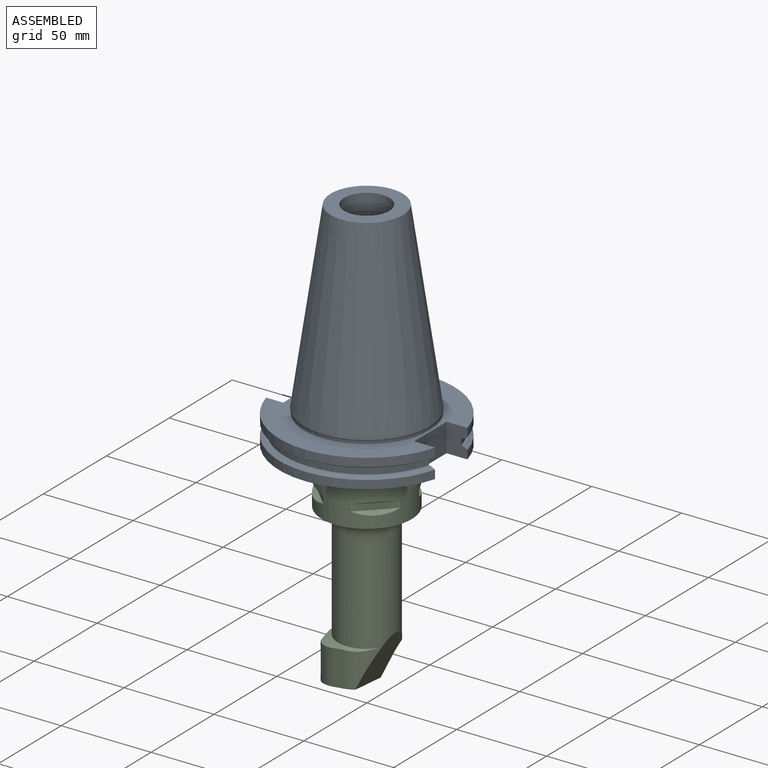
[diagram: assembled view]
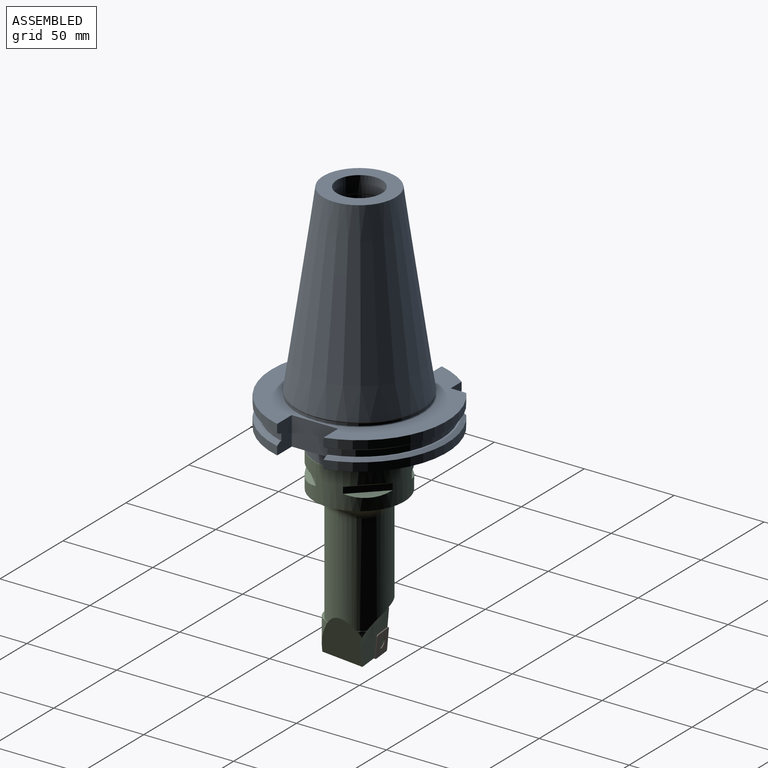
[diagram: assembled view, second angle]
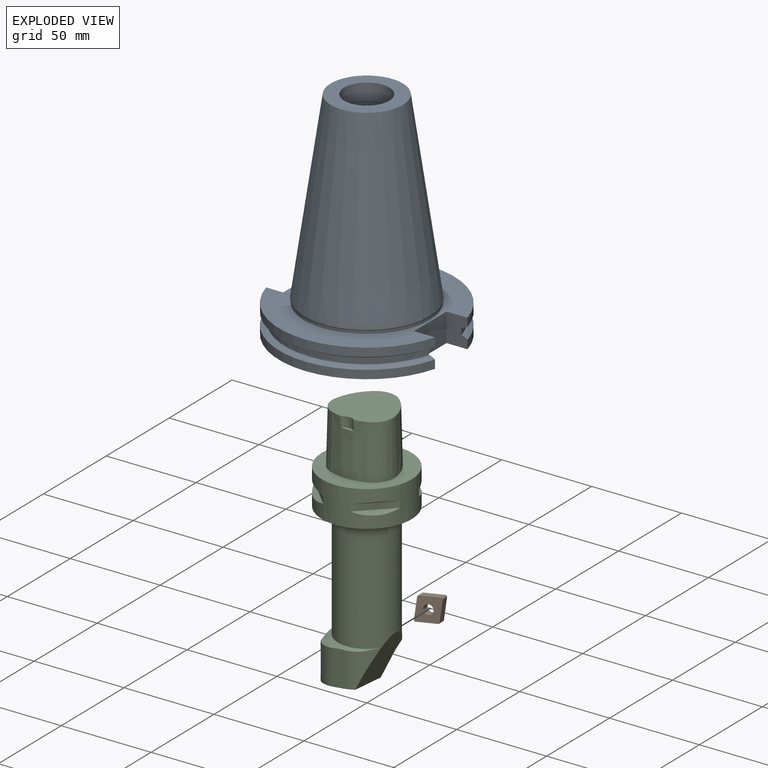
[diagram: exploded view]
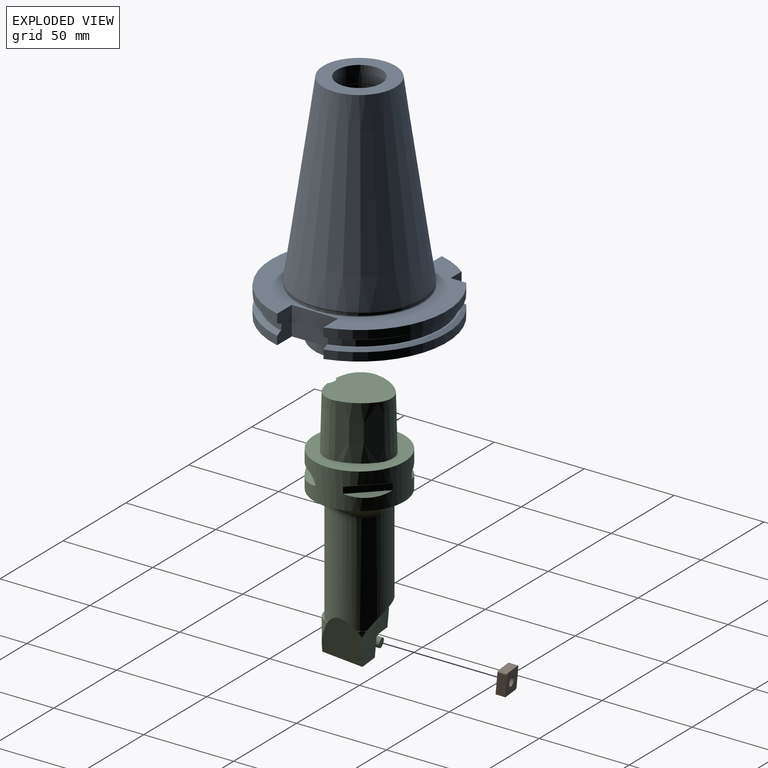
[diagram: exploded view, second angle]
ASSEMBLY  parts=3 mates=2
PART A: 45 faces, bbox 94x97.5x131.6 mm
  f0: plane 25.81x15.85mm, normal (-1,0,0), area 409mm2, adj f5,f8,f22,f23
  f1: cylinder r=48.72mm len=93.97mm, axis (0,0,-1), area 592.5mm2, adj f5,f22,f24,f36
  f2: cylinder r=48.72mm len=76.84mm, axis (0,0,-1), area 446.2mm2, adj f5,f21,f25,f31
  f3: cylinder r=48.72mm len=16.95mm, axis (0,0,-1), area 89mm2, adj f5,f20,f23,f37
  f4: cylinder r=48.72mm len=93.97mm, axis (0,0,-1), area 598.8mm2, adj f8,f22,f24,f35
  f5: plane 97.45x93.97mm, normal (0,0,1), area 2896.8mm2, adj f0,f1,f2,f3,f14,f20,f21,f22
  f6: cylinder r=48.72mm len=76.84mm, axis (0,0,-1), area 451mm2, adj f8,f21,f25,f30
  f7: cylinder r=48.72mm len=16.95mm, axis (0,0,-1), area 89.9mm2, adj f8,f20,f23,f38
  f8: plane 97.45x93.97mm, normal (0,0,-1), area 4848mm2, adj f0,f4,f6,f7,f20,f21,f22,f23
  f9: cylinder r=12.51mm len=25.01mm, axis (0,0,-1), area 726.8mm2, adj f12,f15
  f10: cone r=35.03mm half-angle=30deg, axis (0,0,1), area 143.3mm2, adj f11,f13
  f11: cylinder r=34.7mm len=69.4mm, axis (0,0,-1), area 290.7mm2, adj f10,f14
  f12: plane 40.21x40.21mm, normal (0,0,1), area 778.9mm2, adj f9,f13
  f13: cone r=20.11mm half-angle=8.3deg, axis (0,0,-1), area 17906.8mm2, adj f10,f12
  f14: torus R=35.3mm, axis (0,0,-1), area 206.8mm2, adj f5,f11
  f15: cone r=12.51mm half-angle=27deg, axis (0,0,-1), area 39.3mm2, adj f9,f16
  f16: cylinder r=12.73mm len=25.46mm, axis (0,0,-1), area 158.1mm2, adj f15,f19
  f17: cone r=2.75mm half-angle=70deg, axis (0,0,1), area 368.6mm2, adj f18
  f18: cylinder r=10.5mm len=47.52mm, axis (0,0,-1), area 3135.1mm2, adj f17,f19
  f19: cone r=10.5mm half-angle=70deg, axis (0,0,1), area 173.2mm2, adj f16,f18
  f20: plane 15.85x8.66mm, normal (0,1,0), area 117.4mm2, adj f3,f5,f7,f8,f21,f37,f38,f39
  f21: plane 15.85x8.66mm, normal (-1,0,0), area 117.4mm2, adj f2,f5,f6,f8,f20,f27,f28,f29
  f22: plane 15.87x9.5mm, normal (0,1,0), area 134.4mm2, adj f0,f1,f4,f5,f8,f32,f33,f34
  f23: plane 15.87x9.5mm, normal (0,-1,0), area 134.4mm2, adj f0,f3,f5,f7,f8,f37,f38,f39
  f24: plane 15.87x11.7mm, normal (0,1,0), area 169.2mm2, adj f1,f4,f5,f8,f26,f32,f33,f34
  f25: plane 15.87x11.7mm, normal (0,-1,0), area 169.2mm2, adj f2,f5,f6,f8,f26,f27,f28,f29
  f26: plane 25.81x15.85mm, normal (1,0,0), area 409mm2, adj f5,f8,f24,f25
  f27: plane 74.48x33.56mm, normal (0,0,-1), area 87.9mm2, adj f21,f25,f28,f31
  f28: cylinder r=45.5mm len=73.48mm, axis (0,0,1), area 350.1mm2, adj f21,f25,f27,f29
  f29: plane 74.48x33.56mm, normal (0,0,1), area 87.9mm2, adj f21,f25,f28,f30
  f30: cone r=53.62mm half-angle=60deg, axis (0,0,-1), area 245.8mm2, adj f6,f21,f25,f29
  f31: cone r=46.46mm half-angle=60deg, axis (0,0,1), area 245.8mm2, adj f2,f21,f25,f27
  f32: plane 89.26x33.56mm, normal (0,0,-1), area 113.5mm2, adj f22,f24,f33,f36
  f33: cylinder r=45.5mm len=87.26mm, axis (0,0,1), area 449.6mm2, adj f22,f24,f32,f34
  f34: plane 89.26x33.56mm, normal (0,0,1), area 113.5mm2, adj f22,f24,f33,f35
  f35: cone r=53.62mm half-angle=60deg, axis (0,0,-1), area 322.8mm2, adj f4,f22,f24,f34
  f36: cone r=46.46mm half-angle=60deg, axis (0,0,1), area 322.8mm2, adj f1,f22,f24,f32
  f37: cone r=46.46mm half-angle=60deg, axis (0,0,1), area 50.2mm2, adj f3,f20,f23,f41
  f38: cone r=53.62mm half-angle=60deg, axis (0,0,-1), area 50.2mm2, adj f7,f20,f23,f39
  f39: plane 16.95x10.29mm, normal (0,0,1), area 18.6mm2, adj f20,f23,f38,f40
  f40: cylinder r=45.5mm len=16.95mm, axis (0,0,1), area 75mm2, adj f20,f23,f39,f41
  f41: plane 16.95x10.29mm, normal (0,0,-1), area 18.6mm2, adj f20,f23,f37,f40
  f42: plane 49.4x49.4mm, normal (0,0,-1), area 1916.7mm2, adj f44
  f43: cylinder r=25mm len=50mm, axis (0,0,1), area 1672.9mm2, adj f8,f44
  f44: cone r=25mm half-angle=45deg, axis (0,0,1), area 66.2mm2, adj f42,f43
PART B: 11 faces, bbox 14.2x8.6x14.3 mm
  f0: plane 13.7x13.33mm, normal (0.18,-0.98,0.12), area 142.3mm2, adj f1,f2,f3,f4,f6,f7,f8,f9
  f1: plane 11.73x6.14mm, normal (0.98,0.17,-0.09), area 53.7mm2, adj f0,f5,f6,f9
  f2: plane 11.89x6.8mm, normal (0.11,-0.1,-0.99), area 53.7mm2, adj f0,f5,f8,f9
  f3: plane 11.73x6.14mm, normal (-0.98,-0.17,0.09), area 53.7mm2, adj f0,f5,f7,f8
  f4: plane 11.89x6.8mm, normal (-0.11,0.1,0.99), area 53.7mm2, adj f0,f5,f6,f7
  f5: plane 13.7x13.33mm, normal (-0.18,0.98,-0.12), area 142.3mm2, adj f1,f2,f3,f4,f6,f7,f8,f9
  f6: cylinder r=0.79mm len=4.74mm, axis (-0.18,0.98,-0.12), area 6.6mm2, adj f0,f1,f4,f5
  f7: cylinder r=0.79mm len=4.87mm, axis (-0.18,0.98,-0.12), area 5.3mm2, adj f0,f3,f4,f5
  f8: cylinder r=0.79mm len=4.74mm, axis (-0.18,0.98,-0.12), area 6.6mm2, adj f0,f2,f3,f5
  f9: cylinder r=0.79mm len=4.87mm, axis (-0.18,0.98,-0.12), area 5.3mm2, adj f0,f1,f2,f5
  f10: cylinder r=2.58mm len=5.93mm, axis (-0.18,0.98,-0.12), area 77.1mm2, adj f0,f5
PART C: 48 faces, bbox 53.3x53.3x141.5 mm
  f0: cone r=21.04mm half-angle=59.3deg, axis (0,0,-1), area 149.8mm2, adj f2,f4,f5,f9,f10,f42,f43,f44
  f1: plane 24.64x22.89mm, normal (0.11,-0.1,-0.99), area 411.2mm2, adj f2,f5,f6,f7,f8,f36,f39,f42
  f2: cylinder r=21.04mm len=20.42mm, axis (0,0,-1), area 69.5mm2, adj f0,f1,f8,f9,f42
  f3: cone r=21.04mm half-angle=59.3deg, axis (0,0,-1), area 0.5mm2, adj f4,f5,f10,f47
  f4: cylinder r=24mm len=33.23mm, axis (0.96,0.15,-0.26), area 498.1mm2, adj f0,f3,f5,f7,f9,f10,f47
  f5: plane 29.13x28.6mm, normal (0.92,0,-0.39), area 545.5mm2, adj f0,f1,f3,f4,f7,f10,f43,f44
  f6: plane 4.03x3.39mm, normal (0,0,-1), area 5.6mm2, adj f1,f8,f39
  f7: plane 29.52x20.55mm, normal (-0.18,0.98,-0.12), area 327mm2, adj f1,f4,f5,f9,f36,f37,f40
  f8: plane 5.6x1.66mm, normal (-0.68,-0.21,-0.7), area 3.1mm2, adj f1,f2,f6,f9,f39
  f9: plane 22.02x15.32mm, normal (-0.98,-0.17,0.09), area 212.7mm2, adj f0,f2,f4,f7,f8,f37,f39
  f10: cylinder r=16mm len=56.71mm, axis (0,0,1), area 5407.9mm2, adj f0,f3,f4,f5,f35
  f11: cylinder r=25mm len=50mm, axis (0,0,-1), area 2806mm2, adj f19,f22,f23,f24,f25,f26,f27,f28
  f12: cone r=28mm half-angle=1.4deg, axis (0,0,-1), area 607.9mm2, adj f13,f17,f18,f19
  f13: cone r=12mm half-angle=1.4deg, axis (0,0,-1), area 474.7mm2, adj f12,f14,f18,f19
  f14: cone r=28mm half-angle=1.4deg, axis (0,0,-1), area 606.9mm2, adj f13,f15,f18,f19
  f15: cone r=12mm half-angle=1.4deg, axis (0,0,-1), area 474.7mm2, adj f14,f16,f18,f19
  f16: cone r=28mm half-angle=1.4deg, axis (0,0,-1), area 568.6mm2, adj f15,f17,f18,f19,f20,f21
  f17: cone r=12mm half-angle=1.4deg, axis (0,0,-1), area 475.3mm2, adj f12,f16,f18,f19
  f18: plane 33.96x33.26mm, normal (0,0,1), area 866.8mm2, adj f12,f13,f14,f15,f16,f17,f21
  f19: plane 50x50mm, normal (0,0,1), area 1007.5mm2, adj f11,f12,f13,f14,f15,f16,f17
  f20: plane 7.18x1.75mm, normal (0,0,1), area 8.6mm2, adj f16,f21
  f21: cylinder r=5mm len=7.18mm, axis (0,0,-1), area 43.4mm2, adj f16,f18,f20
  f22: plane 19.56x19.56mm, normal (-0.35,-0.35,-0.87), area 50.6mm2, adj f11,f23
  f23: plane 16.31x16.31mm, normal (-0.71,-0.71,0), area 80.7mm2, adj f11,f22,f24
  f24: plane 19.56x19.56mm, normal (-0.35,-0.35,0.87), area 50.6mm2, adj f11,f23
  f25: plane 19.56x19.56mm, normal (-0.35,0.35,-0.87), area 50.6mm2, adj f11,f26
  f26: plane 16.31x16.31mm, normal (-0.71,0.71,0), area 80.7mm2, adj f11,f25,f27
  f27: plane 19.56x19.56mm, normal (-0.35,0.35,0.87), area 50.6mm2, adj f11,f26
  f28: plane 19.56x19.56mm, normal (0.35,0.35,-0.87), area 50.6mm2, adj f11,f29
  f29: plane 16.31x16.31mm, normal (0.71,0.71,0), area 80.7mm2, adj f11,f28,f30
  f30: plane 19.56x19.56mm, normal (0.35,0.35,0.87), area 50.6mm2, adj f11,f29
  f31: plane 19.56x19.56mm, normal (0.35,-0.35,-0.87), area 50.6mm2, adj f11,f32
  f32: plane 16.31x16.31mm, normal (0.71,-0.71,0), area 80.7mm2, adj f11,f31,f33
  f33: plane 19.56x19.56mm, normal (0.35,-0.35,0.87), area 50.6mm2, adj f11,f32
  f34: cone r=16mm half-angle=75deg, axis (0,0,1), area 572.6mm2, adj f11,f35
  f35: torus R=23mm, axis (0,0,-1), area 1026.8mm2, adj f10,f34
  f36: plane 11.53x5.7mm, normal (-0.98,-0.17,0.09), area 48.2mm2, adj f1,f7,f39,f40
  f37: plane 11.67x6.35mm, normal (0.11,-0.1,-0.99), area 48.2mm2, adj f7,f9,f39,f40
  f38: cylinder r=2.58mm len=5.85mm, axis (-0.18,0.98,-0.12), area 70.1mm2, adj f39,f41
  f39: plane 12.53x12.5mm, normal (-0.18,0.98,-0.12), area 121.9mm2, adj f1,f6,f8,f9,f36,f37,f38,f40
  f40: cylinder r=0.79mm len=4.31mm, axis (-0.18,0.98,-0.12), area 6mm2, adj f7,f36,f37,f39
  f41: plane 5.12x5.07mm, normal (-0.18,0.98,-0.12), area 20.9mm2, adj f38
  f42: cylinder r=14.8mm len=21.14mm, axis (0,0,1), area 237.6mm2, adj f0,f1,f2,f46
  f43: cylinder r=16.1mm len=1.49mm, axis (0,0,1), area 0.9mm2, adj f0,f5,f44
  f44: plane 6.68x3.21mm, normal (0.82,-0.57,0), area 14.1mm2, adj f0,f5,f43,f45
  f45: cylinder r=13.56mm len=20.29mm, axis (0,0,1), area 202.7mm2, adj f0,f1,f5,f44,f46
  f46: plane 20x5.5mm, normal (0,-1,0), area 107.5mm2, adj f0,f1,f42,f45
  f47: cylinder r=16.1mm len=3.44mm, axis (0,0,1), area 7.1mm2, adj f3,f4,f5
PLACE A t=(0,0,-101.6)mm
PLACE B t=(0,0,-131.6)mm
PLACE C t=(0,0,-131.6)mm
MATE fastened C.f0 <-> A.f1  axis (0,0,1) through (0,0,-131.6)mm
MATE fastened C.f38 <-> B.f10  axis (-0.18,0.98,-0.12) through (-14.35,-2.59,-234.18)mm
